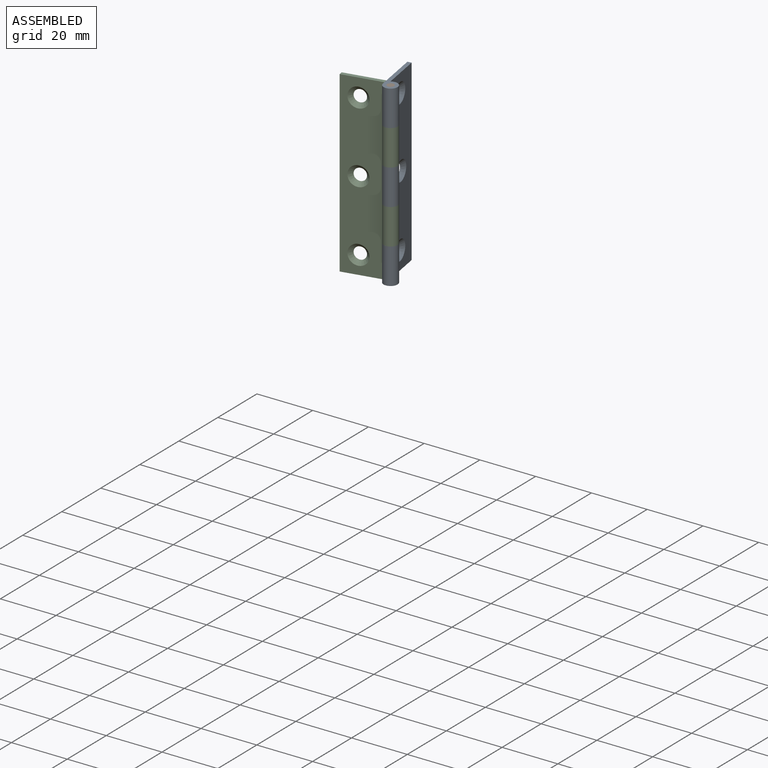
[diagram: assembled view]
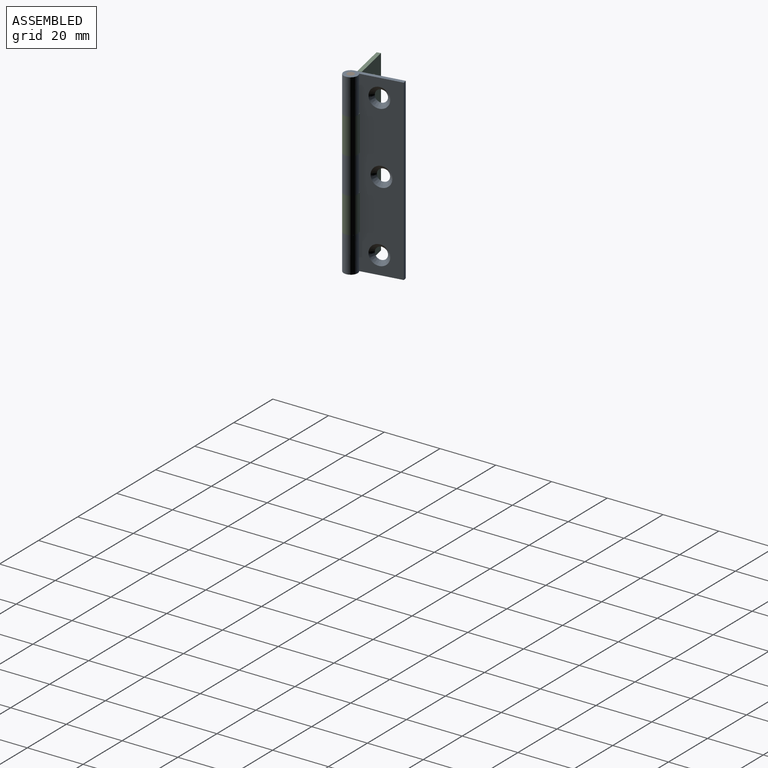
[diagram: assembled view, second angle]
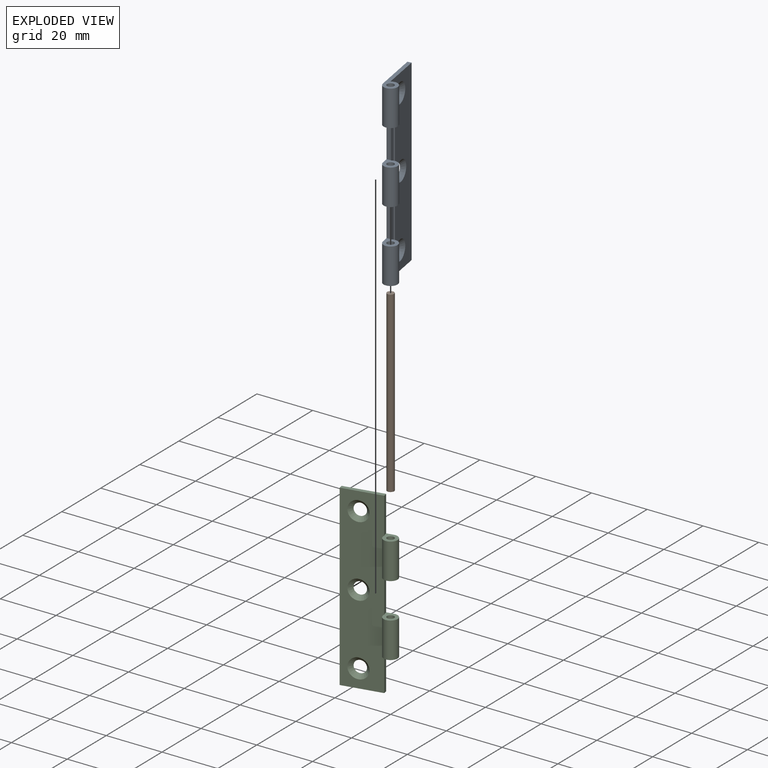
[diagram: exploded view]
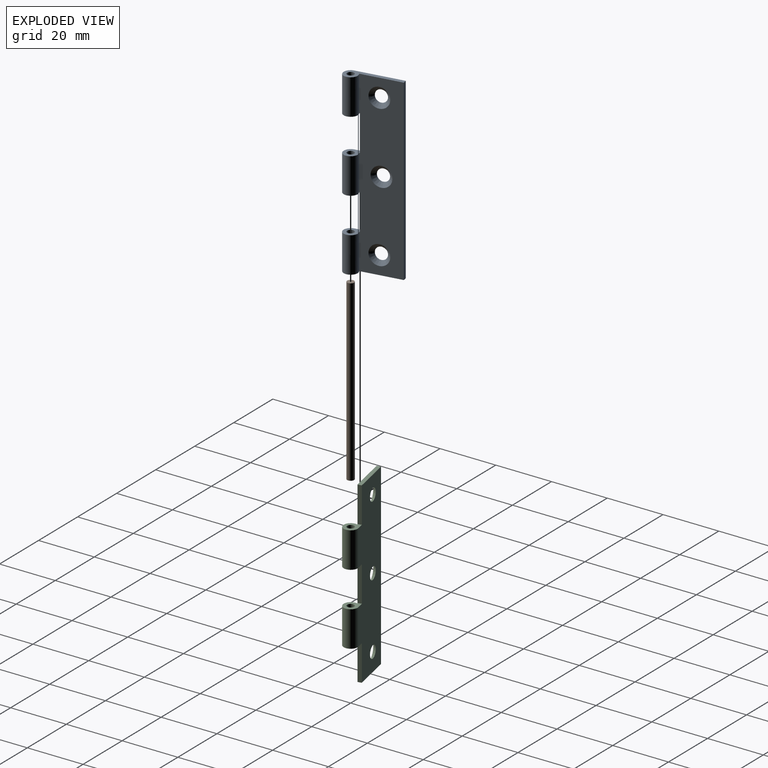
[diagram: exploded view, second angle]
ASSEMBLY  parts=3 mates=2
PART A: 20 faces, bbox 19.2x5x64 mm
  f0: plane 64x16.75mm, normal (0,1,0), area 964.4mm2, adj f1,f5,f6,f7,f8,f9,f10,f12
  f1: cylinder r=2.5mm len=64mm, axis (0,0,-1), area 508.7mm2, adj f0,f2,f6,f7,f11,f12,f13,f16
  f2: plane 64x14.5mm, normal (0,-1,0), area 803mm2, adj f1,f5,f6,f7,f8,f9,f10,f12
  f3: cylinder r=1.25mm len=12.8mm, axis (0,0,-1), area 100.5mm2, adj f7,f18
  f4: cylinder r=1.25mm len=12.8mm, axis (0,0,-1), area 100.5mm2, adj f6,f13
  f5: plane 64x1.4mm, normal (1,0,0), area 89.6mm2, adj f0,f2,f6,f7
  f6: plane 19.25x5mm, normal (0,0,1), area 35.9mm2, adj f0,f1,f2,f4,f5
  f7: plane 19.25x5mm, normal (0,0,-1), area 35.9mm2, adj f0,f1,f2,f3,f5
  f8: cone r=2.15mm half-angle=45deg, axis (0,-1,0), area 35.5mm2, adj f0,f2
  f9: cone r=2.15mm half-angle=45deg, axis (0,-1,0), area 35.5mm2, adj f0,f2
  f10: cone r=2.15mm half-angle=45deg, axis (0,-1,0), area 35.5mm2, adj f0,f2
  f11: plane 12.8x0.49mm, normal (-1,0,0), area 6.3mm2, adj f1,f12,f13
  f12: plane 5x4.99mm, normal (0,0,1), area 16mm2, adj f0,f1,f2,f11,f14,f15
  f13: plane 5x4.99mm, normal (0,0,-1), area 16mm2, adj f0,f1,f2,f4,f11,f14
  f14: plane 12.8x1.4mm, normal (-1,0,0), area 17.9mm2, adj f0,f2,f12,f13
  f15: cylinder r=1.25mm len=12.8mm, axis (0,0,-1), area 100.5mm2, adj f12,f17
  f16: plane 12.8x0.49mm, normal (-1,0,0), area 6.3mm2, adj f1,f17,f18
  f17: plane 5x4.99mm, normal (0,0,-1), area 16mm2, adj f0,f1,f2,f15,f16,f19
  f18: plane 5x4.99mm, normal (0,0,1), area 16mm2, adj f0,f1,f2,f3,f16,f19
  f19: plane 12.8x1.4mm, normal (-1,0,0), area 17.9mm2, adj f0,f2,f17,f18
PART B: 3 faces, bbox 2.5x2.5x64 mm
  f0: cylinder r=1.25mm len=64mm, axis (0,0,-1), area 502.7mm2, adj f1,f2
  f1: plane 2.5x2.5mm, normal (0,0,1), area 4.9mm2, adj f0
  f2: plane 2.5x2.5mm, normal (0,0,-1), area 4.9mm2, adj f0
PART C: 19 faces, bbox 19.2x5x64 mm
  f0: plane 64x16.75mm, normal (0,1,0), area 932.1mm2, adj f1,f2,f4,f5,f6,f7,f8,f9
  f1: cylinder r=2.5mm len=12.8mm, axis (0,0,-1), area 165.4mm2, adj f0,f3,f10,f12
  f2: cylinder r=2.5mm len=12.8mm, axis (0,0,-1), area 165.4mm2, adj f0,f3,f13,f15
  f3: plane 64x14.5mm, normal (0,-1,0), area 799.4mm2, adj f1,f2,f4,f5,f6,f7,f8,f9
  f4: plane 14.25x1.4mm, normal (0,0,1), area 19.9mm2, adj f0,f3,f6,f16
  f5: plane 14.25x1.4mm, normal (0,0,-1), area 19.9mm2, adj f0,f3,f6,f11
  f6: plane 64x1.4mm, normal (1,0,0), area 89.6mm2, adj f0,f3,f4,f5
  f7: cone r=2.15mm half-angle=45deg, axis (0,-1,0), area 35.5mm2, adj f0,f3
  f8: cone r=2.15mm half-angle=45deg, axis (0,-1,0), area 35.5mm2, adj f0,f3
  f9: cone r=2.15mm half-angle=45deg, axis (0,-1,0), area 35.5mm2, adj f0,f3
  f10: plane 5x5mm, normal (0,0,-1), area 16mm2, adj f0,f1,f3,f11,f17
  f11: plane 12.8x1.4mm, normal (-1,0,0), area 17.9mm2, adj f0,f3,f5,f10
  f12: plane 5x5mm, normal (0,0,1), area 16mm2, adj f0,f1,f3,f14,f17
  f13: plane 5x5mm, normal (0,0,-1), area 16mm2, adj f0,f2,f3,f14,f18
  f14: plane 12.8x1.4mm, normal (-1,0,0), area 17.9mm2, adj f0,f3,f12,f13
  f15: plane 5x5mm, normal (0,0,1), area 16mm2, adj f0,f2,f3,f16,f18
  f16: plane 12.8x1.4mm, normal (-1,0,0), area 17.9mm2, adj f0,f3,f4,f15
  f17: cylinder r=1.25mm len=12.8mm, axis (0,0,-1), area 100.5mm2, adj f10,f12
  f18: cylinder r=1.25mm len=12.8mm, axis (0,0,-1), area 100.5mm2, adj f13,f15
PLACE A rot(axis=(0,0,1),99.6deg) t=(0,0,0)mm
PLACE B at identity
PLACE C rot(axis=(0.1,-0.99,0),180deg) t=(0,0,64)mm
MATE revolute B.f0 <-> A.f1  axis (0,0,1) through (0,0,64)mm
MATE revolute C.f1 <-> A.f1  axis (0,0,-1) through (0,0,38.4)mm
